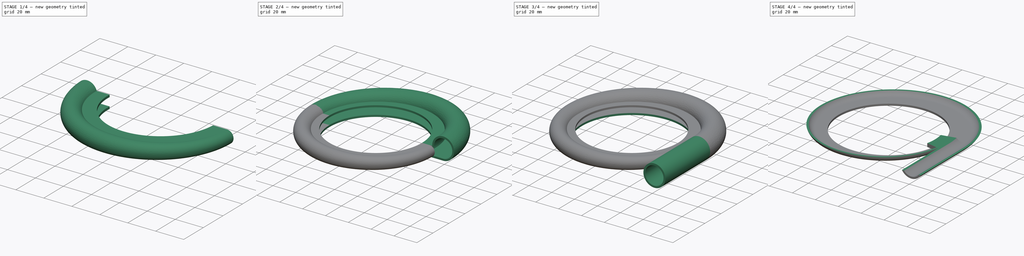
[diagram: build sequence overview — one tinted view per stage of 4, left to right]
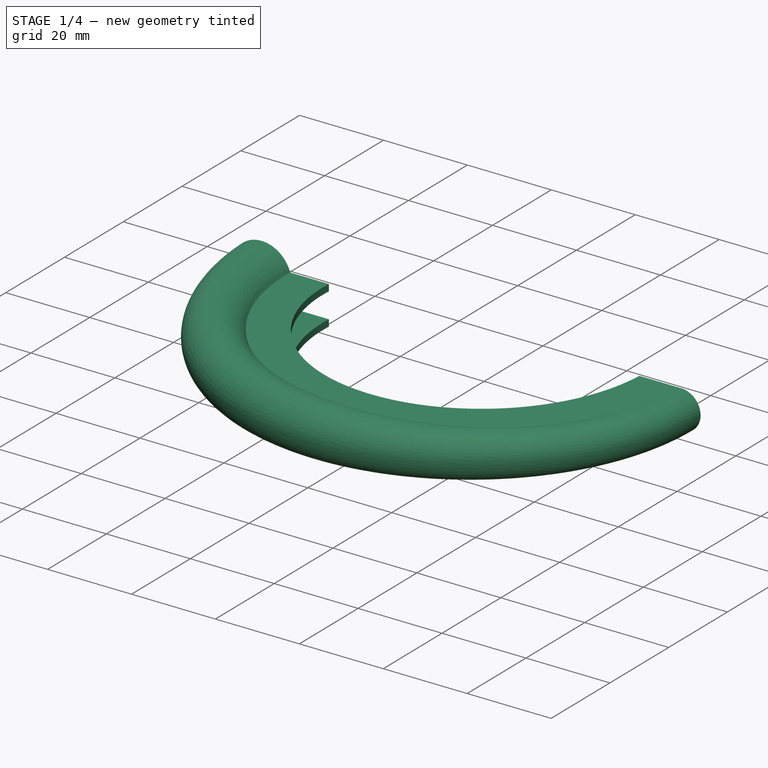
[diagram: stage 1 of 4 — iso view after this stage's code; geometry added in this stage tinted green]
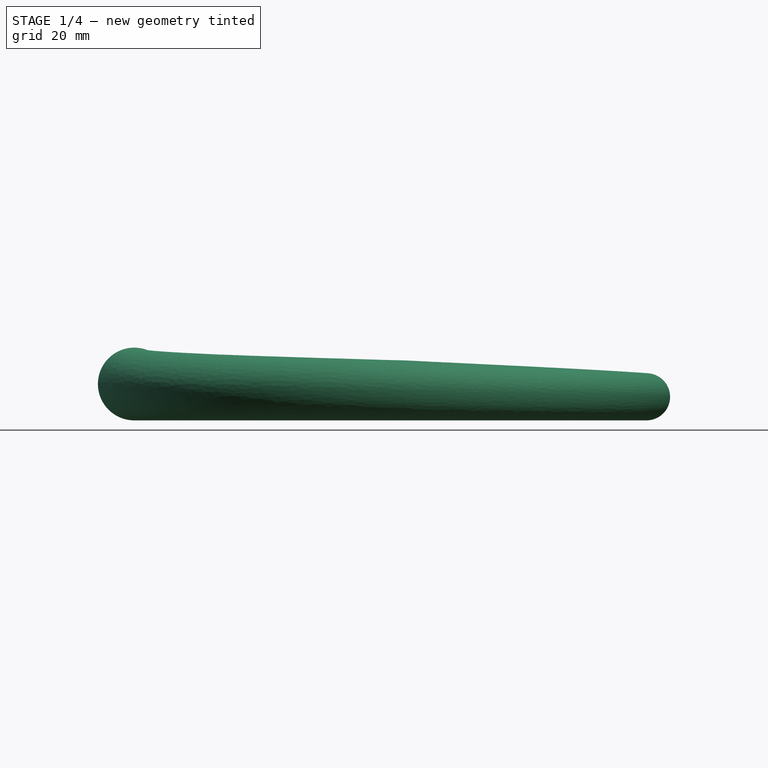
[diagram: stage 1 of 4 — front view after this stage's code; geometry added in this stage tinted green]
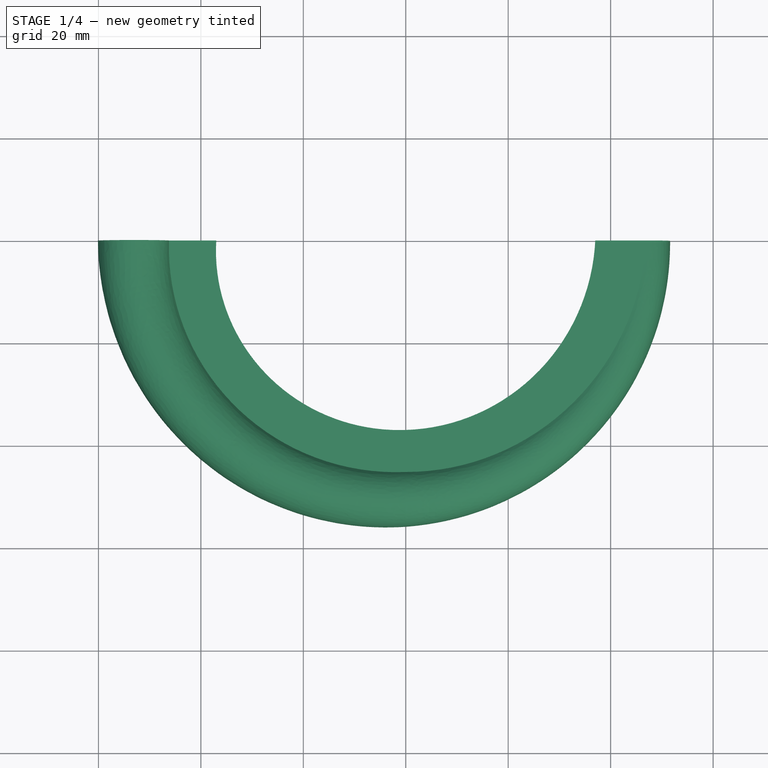
[diagram: stage 1 of 4 — top view after this stage's code; geometry added in this stage tinted green]
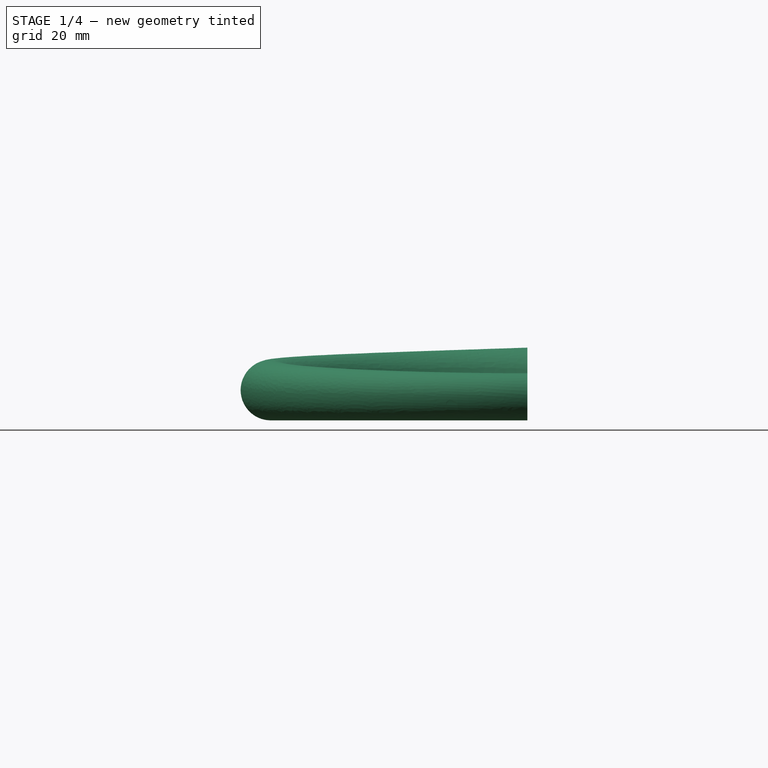
[diagram: stage 1 of 4 — right view after this stage's code; geometry added in this stage tinted green]
FCSTD DOCUMENT  (FreeCAD 0.18R4 (GitTag))
Label: volute_bottom
License: All rights reserved
LicenseURL: http://en.wikipedia.org/wiki/All_rights_reserved
objects: Sketcher::SketchObject×15, PartDesign::Plane×6, PartDesign::AdditivePipe×4, PartDesign::Pocket×3, PartDesign::Revolution×2, PartDesign::Pad×1, PartDesign::Line×1, PartDesign::Body×1
note: 43 computed .brp shape members not serialized (recipe doc carries the construction recipe); baked Part::Feature solids carry a one-line shape summary decoded from their .brp

FEATURE [PartDesign::Plane] DatumPlane
  AttachmentOffset = pos=(47,0,0) rot=(0,0,1;0rad)
  Length = 136.914
  MapMode = 5
  Placement = pos=(47,0,0) rot=(1,0,0;1.5708rad)
  ResizeMode = 0
  Support = -> [XZ_Plane]
  Width = 30.0733
FEATURE [Sketcher::SketchObject] Sketch
  MapMode = 5
  Placement = pos=(47,0,0) rot=(1,0,0;1.5708rad)
  Support = -> [DatumPlane]
  sketch-geometry (8):
    g0: LineSegment StartX=2.96654e-08 StartY=3 StartZ=0 EndX=-10 EndY=3 EndZ=0
    g1: LineSegment StartX=-10 StartY=-3 StartZ=0 EndX=0 EndY=-3 EndZ=0
    g2: ArcOfCircle CenterX=0 CenterY=0 CenterZ=0 NormalX=0 NormalY=0 NormalZ=1 AngleXU=0 Radius=3 StartAngle=4.71239 EndAngle=7.85398
    g3: LineSegment StartX=-10 StartY=3 StartZ=0 EndX=-10 EndY=4.6 EndZ=0
    g4: LineSegment StartX=-10 StartY=4.6 StartZ=0 EndX=2.96654e-08 EndY=4.6 EndZ=0
    g5: LineSegment StartX=-10 StartY=-3 StartZ=0 EndX=-10 EndY=-4.6 EndZ=0
    g6: LineSegment StartX=-10 StartY=-4.6 StartZ=0 EndX=0 EndY=-4.6 EndZ=0
    g7: ArcOfCircle CenterX=0 CenterY=0 CenterZ=0 NormalX=0 NormalY=0 NormalZ=1 AngleXU=0 Radius=4.6 StartAngle=4.71239 EndAngle=7.85398
  constraints (23):
    c: Horizontal(g0)
    c: Horizontal(g1)
    c: Symmetric(g1,g0,g-1)
    c: Coincident(g2,g-1)
    c: Coincident(g2,g0)
    c: Coincident(g2,g1)
    c: Vertical(g1,g2)
    c: Coincident(g0,g3)
    c: Vertical(g3)
    c: Coincident(g3,g4)
    c: Vertical(g5)
    c: Coincident(g5,g6)
    c: Horizontal(g6)
    c: Distance(g3) = 1.6
    c: Distance(g5) = 1.6
    c: Coincident(g5,g1)
    c: Vertical(g6,g1)
    c: Vertical(g4,g0)
    c: Coincident(g7,g2)
    c: Coincident(g7,g4)
    c: Coincident(g7,g6)
    c: DistanceY(g1,g0) = 6
    c: Distance(g0) = 10
FEATURE [PartDesign::Plane] DatumPlane001
  AttachmentOffset = pos=(-50,0,0) rot=(0,0,1;0rad)
  Length = 129.352
  MapMode = 5
  Placement = pos=(-1.11e-14,-50,1.11e-14) rot=(0.57735,0.57735,0.57735;2.0944rad)
  ResizeMode = 0
  Support = -> [YZ_Plane]
  Width = 29.7804
FEATURE [Sketcher::SketchObject] Sketch001
  MapMode = 5
  Placement = pos=(-1.11e-14,-50,1.11e-14) rot=(0.57735,0.57735,0.57735;2.0944rad)
  Support = -> [DatumPlane001]
  sketch-geometry (8):
    g0: ArcOfCircle CenterX=0 CenterY=1.25 CenterZ=0 NormalX=0 NormalY=0 NormalZ=1 AngleXU=0 Radius=4.25 StartAngle=0.42439 EndAngle=4.71239
    g1: LineSegment StartX=0 StartY=-3 StartZ=0 EndX=13 EndY=-3 EndZ=0
    g2: LineSegment StartX=13 StartY=3 StartZ=0 EndX=3.87298 EndY=3 EndZ=0
    g3: LineSegment StartX=13 StartY=3 StartZ=0 EndX=13 EndY=4.6 EndZ=0
    g4: LineSegment StartX=13 StartY=4.6 StartZ=0 EndX=4.79583 EndY=4.6 EndZ=0
    g5: LineSegment StartX=13 StartY=-3 StartZ=0 EndX=13 EndY=-4.6 EndZ=0
    g6: LineSegment StartX=13 StartY=-4.6 StartZ=0 EndX=0 EndY=-4.6 EndZ=0
    g7: ArcOfCircle CenterX=0 CenterY=1.25 CenterZ=0 NormalX=0 NormalY=0 NormalZ=1 AngleXU=0 Radius=5.85 StartAngle=0.609734 EndAngle=4.71239
  constraints (24):
    c: Radius(g0) = 4.25
    c: Coincident(g2,g0)
    c: Horizontal(g1)
    c: Horizontal(g2)
    c: Coincident(g0,g1)
    c: DistanceY(g1,g2) = 6
    c: DistanceX(g0,g2) = 13
    c: Vertical(g3)
    c: Coincident(g3,g4)
    c: Horizontal(g4)
    c: Coincident(g1,g5)
    c: Vertical(g5)
    c: Coincident(g5,g6)
    c: Coincident(g7,g0)
    c: Coincident(g7,g4)
    c: Radius(g7) = 5.85
    c: Coincident(g3,g2)
    c: Vertical(g0,g-1)
    c: Tangent(g7,g6) = 1.5708
    c: Vertical(g6,g0)
    c: Vertical(g0,g-1)
    c: Distance(g3) = 1.6
    c: Distance(g0,g-1) = 3
    c: Vertical(g1,g2)
FEATURE [PartDesign::Plane] DatumPlane002
  AttachmentOffset = pos=(-53,0,0) rot=(0,0,1;0rad)
  Length = 136.914
  MapMode = 5
  Placement = pos=(-53,0,0) rot=(1,0,0;1.5708rad)
  ResizeMode = 0
  Support = -> [XZ_Plane]
  Width = 30.0733
FEATURE [Sketcher::SketchObject] Sketch002
  MapMode = 5
  Placement = pos=(-53,0,0) rot=(1,0,0;1.5708rad)
  Support = -> [DatumPlane002]
  sketch-geometry (8):
    g0: ArcOfCircle CenterX=0 CenterY=2.5 CenterZ=0 NormalX=0 NormalY=0 NormalZ=1 AngleXU=0 Radius=5.5 StartAngle=0.0910348 EndAngle=4.71238
    g1: LineSegment StartX=5.47723 StartY=3 StartZ=0 EndX=16 EndY=3 EndZ=0
    g2: LineSegment StartX=16 StartY=-3 StartZ=0 EndX=-2.99372e-05 EndY=-3 EndZ=0
    g3: LineSegment StartX=16 StartY=3 StartZ=0 EndX=16 EndY=4.6 EndZ=0
    g4: LineSegment StartX=16 StartY=4.6 StartZ=0 EndX=6.78233 EndY=4.6 EndZ=0
    g5: LineSegment StartX=16 StartY=-3 StartZ=0 EndX=16 EndY=-4.6 EndZ=0
    g6: LineSegment StartX=16 StartY=-4.6 StartZ=0 EndX=0 EndY=-4.6 EndZ=0
    g7: ArcOfCircle CenterX=0 CenterY=2.5 CenterZ=0 NormalX=0 NormalY=0 NormalZ=1 AngleXU=0 Radius=7.1 StartAngle=0.300266 EndAngle=4.71239
  constraints (23):
    c: Horizontal(g1)
    c: Horizontal(g2)
    c: Symmetric(g2,g1,g-1)
    c: DistanceX(g0,g1) = 16
    c: Coincident(g0,g1)
    c: Coincident(g0,g2)
    c: Coincident(g1,g3)
    c: Vertical(g3)
    c: Coincident(g3,g4)
    c: Horizontal(g4)
    c: Vertical(g5)
    c: Coincident(g5,g6)
    c: Horizontal(g6)
    c: Coincident(g5,g2)
    c: Distance(g3) = 1.6
    c: Distance(g5) = 1.6
    c: Coincident(g7,g0)
    c: Coincident(g7,g4)
    c: DistanceY(g2,g1) = 6
    c: Vertical(g0,g-1)
    c: Tangent(g7,g6) = 1.5708
    c: Radius(g0) = 5.5
    c: Radius(g7) = 7.1
FEATURE [PartDesign::Plane] DatumPlane003
  AttachmentOffset = pos=(56,0,0) rot=(0,0,1;0rad)
  Length = 129.352
  MapMode = 5
  Placement = pos=(1.24e-14,56,-1.24e-14) rot=(0.57735,0.57735,0.57735;2.0944rad)
  ResizeMode = 0
  Support = -> [YZ_Plane]
  Width = 29.7804
FEATURE [Sketcher::SketchObject] Sketch003
  MapMode = 5
  Placement = pos=(1.24e-14,56,-1.24e-14) rot=(0.57735,0.57735,0.57735;2.0944rad)
  Support = -> [DatumPlane003]
  sketch-geometry (8):
    g0: ArcOfCircle CenterX=0 CenterY=3.75 CenterZ=0 NormalX=0 NormalY=0 NormalZ=1 AngleXU=0 Radius=6.75 StartAngle=4.71239 EndAngle=9.53612
    g1: LineSegment StartX=-6.7082 StartY=3 StartZ=0 EndX=-19 EndY=3 EndZ=0
    g2: LineSegment StartX=-19 StartY=-3 StartZ=0 EndX=3.61201e-05 EndY=-3 EndZ=0
    g3: ArcOfCircle CenterX=0 CenterY=3.75 CenterZ=0 NormalX=0 NormalY=0 NormalZ=1 AngleXU=0 Radius=8.35 StartAngle=4.71239 EndAngle=9.3228
    g4: LineSegment StartX=-19 StartY=3 StartZ=0 EndX=-19 EndY=4.6 EndZ=0
    g5: LineSegment StartX=-19 StartY=4.6 StartZ=0 EndX=-8.30662 EndY=4.6 EndZ=0
    g6: LineSegment StartX=-19 StartY=-3 StartZ=0 EndX=-19 EndY=-4.6 EndZ=0
    g7: LineSegment StartX=-19 StartY=-4.6 StartZ=0 EndX=0 EndY=-4.6 EndZ=0
  constraints (23):
    c: Radius(g0) = 6.75
    c: Horizontal(g1)
    c: Horizontal(g2)
    c: Symmetric(g2,g1,g-1)
    c: DistanceY(g2,g1) = 6
    c: Coincident(g0,g2)
    c: Coincident(g0,g1)
    c: DistanceX(g1,g0) = 19
    c: Coincident(g3,g0)
    c: Radius(g3) = 8.35
    c: Coincident(g1,g4)
    c: Coincident(g4,g5)
    c: Coincident(g5,g3)
    c: Coincident(g2,g6)
    c: Vertical(g6)
    c: Coincident(g6,g7)
    c: Horizontal(g7)
    c: Vertical(g4)
    c: Horizontal(g5)
    c: Distance(g4) = 1.6
    c: Distance(g6) = 1.6
    c: Vertical(g0,g-1)
    c: Tangent(g7,g3) = -1.5708
FEATURE [PartDesign::Plane] DatumPlane004
  AttachmentOffset = pos=(59,0,0) rot=(0,0,1;0rad)
  Length = 136.914
  MapMode = 5
  Placement = pos=(59,0,0) rot=(1,0,0;1.5708rad)
  ResizeMode = 0
  Support = -> [XZ_Plane]
  Width = 30.0733
FEATURE [Sketcher::SketchObject] Sketch004
  MapMode = 5
  Placement = pos=(59,0,0) rot=(1,0,0;1.5708rad)
  Support = -> [DatumPlane004]
  sketch-geometry (8):
    g0: ArcOfCircle CenterX=0 CenterY=5 CenterZ=0 NormalX=0 NormalY=0 NormalZ=1 AngleXU=0 Radius=8 StartAngle=4.71239 EndAngle=9.67746
    g1: LineSegment StartX=-7.74597 StartY=3 StartZ=0 EndX=-22 EndY=3 EndZ=0
    g2: LineSegment StartX=-22 StartY=-3 StartZ=0 EndX=2.10554e-05 EndY=-3 EndZ=0
    g3: LineSegment StartX=-22 StartY=3 StartZ=0 EndX=-22 EndY=4.6 EndZ=0
    g4: LineSegment StartX=-22 StartY=4.6 StartZ=0 EndX=-9.59166 EndY=4.6 EndZ=0
    g5: LineSegment StartX=-22 StartY=-3 StartZ=0 EndX=-22 EndY=-4.6 EndZ=0
    g6: LineSegment StartX=-22 StartY=-4.6 StartZ=0 EndX=0 EndY=-4.6 EndZ=0
    g7: ArcOfCircle CenterX=0 CenterY=5 CenterZ=0 NormalX=0 NormalY=0 NormalZ=1 AngleXU=0 Radius=9.6 StartAngle=4.71239 EndAngle=9.46646
  constraints (23):
    c: Radius(g0) = 8
    c: Horizontal(g1)
    c: Symmetric(g2,g1,g-1)
    c: Horizontal(g2)
    c: DistanceY(g2,g1) = 6
    c: DistanceX(g1,g0) = 22
    c: Coincident(g0,g2)
    c: Coincident(g0,g1)
    c: Coincident(g1,g3)
    c: Vertical(g3)
    c: Coincident(g3,g4)
    c: Horizontal(g4)
    c: Coincident(g2,g5)
    c: Vertical(g5)
    c: Coincident(g5,g6)
    c: Horizontal(g6)
    c: Coincident(g7,g0)
    c: Coincident(g7,g4)
    c: Radius(g7) = 9.6
    c: Distance(g3) = 1.6
    c: Distance(g5) = 1.6
    c: Vertical(g0,g-1)
    c: Tangent(g7,g6) = -1.5708
FEATURE [Sketcher::SketchObject] Sketch005
  MapMode = 5
  Support = -> [XY_Plane]
  sketch-geometry (5):
    g0: ArcOfCircle [constr] CenterX=3.28278 CenterY=0.383694 CenterZ=0 NormalX=0 NormalY=0 NormalZ=1 AngleXU=0 Radius=52.7186 StartAngle=6.27591 EndAngle=7.91629
    g1: ArcOfCircle [constr] CenterX=3.32028 CenterY=-0.217241 CenterZ=0 NormalX=0 NormalY=0 NormalZ=1 AngleXU=0 Radius=53.3207 StartAngle=1.63311 EndAngle=3.13752
    g2: ArcOfCircle [constr] CenterX=-3.08966 CenterY=-0.191125 CenterZ=0 NormalX=0 NormalY=0 NormalZ=1 AngleXU=0 Radius=46.9107 StartAngle=3.13752 EndAngle=4.7783
    g3: ArcOfCircle CenterX=-3.10227 CenterY=1.14829e-07 CenterZ=0 NormalX=0 NormalY=0 NormalZ=1 AngleXU=0 Radius=47.1023 StartAngle=4.7783 EndAngle=6.28319
    g4: LineSegment [constr] StartX=44 StartY=0 StartZ=0 EndX=44 EndY=-23.8394 EndZ=0
  constraints (16):
    c: PointOnObject(g0,g-1)
    c: PointOnObject(g0,g-2)
    c: DistanceX(g-1,g0) = 56
    c: DistanceY(g-1,g0) = 53
    c: PointOnObject(g1,g-1)
    c: Tangent(g1,g0) = -1.5708
    c: DistanceX(g1,g-1) = 50
    c: PointOnObject(g2,g-2)
    c: Tangent(g2,g1) = -1.5708
    c: DistanceY(g2,g-1) = 47
    c: PointOnObject(g3,g-1)
    c: Tangent(g3,g2) = -1.5708
    c: DistanceX(g-1,g3) = 44
    c: Coincident(g4,g3)
    c: Vertical(g4)
    c: Tangent(g3,g4)
FEATURE [PartDesign::AdditivePipe] AdditivePipe
  AuxilleryCurvelinear = true
  AuxillerySpineTangent = false
  Binormal = (0,0,0)
  Mode = 0
  Placement = pos=(47,0,0) rot=(1,0,0;1.5708rad)
  Profile = -> Sketch
  Sections = -> [Sketch001]
  Spine = -> Sketch005
  SpineTangent = false
  Transformation = 1
  Transition = 0
FEATURE [Sketcher::SketchObject] CopySketch006
  sketch-geometry (5):
    g0: ArcOfCircle [constr] CenterX=3.28278 CenterY=0.383695 CenterZ=0 NormalX=0 NormalY=0 NormalZ=1 AngleXU=0 Radius=52.7186 StartAngle=6.27591 EndAngle=7.91629
    g1: ArcOfCircle [constr] CenterX=3.32028 CenterY=-0.217241 CenterZ=0 NormalX=0 NormalY=0 NormalZ=1 AngleXU=0 Radius=53.3207 StartAngle=1.63311 EndAngle=3.13752
    g2: ArcOfCircle CenterX=-3.08966 CenterY=-0.191126 CenterZ=0 NormalX=0 NormalY=0 NormalZ=1 AngleXU=0 Radius=46.9107 StartAngle=3.13752 EndAngle=4.7783
    g3: ArcOfCircle [constr] CenterX=-3.10227 CenterY=7.62761e-07 CenterZ=0 NormalX=0 NormalY=0 NormalZ=1 AngleXU=0 Radius=47.1023 StartAngle=4.7783 EndAngle=6.28319
    g4: LineSegment [constr] StartX=44 StartY=-1.24e-14 StartZ=0 EndX=44 EndY=-23.8394 EndZ=0
  constraints (16):
    c: PointOnObject(g0,g-1)
    c: PointOnObject(g0,g-2)
    c: DistanceX(g-1,g0) = 56
    c: DistanceY(g-1,g0) = 53
    c: PointOnObject(g1,g-1)
    c: Tangent(g1,g0) = -1.5708
    c: DistanceX(g1,g-1) = 50
    c: PointOnObject(g2,g-2)
    c: Tangent(g2,g1) = -1.5708
    c: DistanceY(g2,g-1) = 47
    c: PointOnObject(g3,g-1)
    c: Tangent(g3,g2) = -1.5708
    c: DistanceX(g-1,g3) = 44
    c: Coincident(g4,g3)
    c: Vertical(g4)
    c: Tangent(g3,g4)
FEATURE [PartDesign::AdditivePipe] AdditivePipe001
  AuxilleryCurvelinear = true
  AuxillerySpineTangent = false
  BaseFeature = -> AdditivePipe
  Binormal = (0,0,0)
  Mode = 0
  Placement = pos=(47,0,0) rot=(1,0,0;1.5708rad)
  Profile = -> Sketch001
  Sections = -> [Sketch002]
  Spine = -> CopySketch006
  SpineTangent = false
  Transformation = 1
  Transition = 0
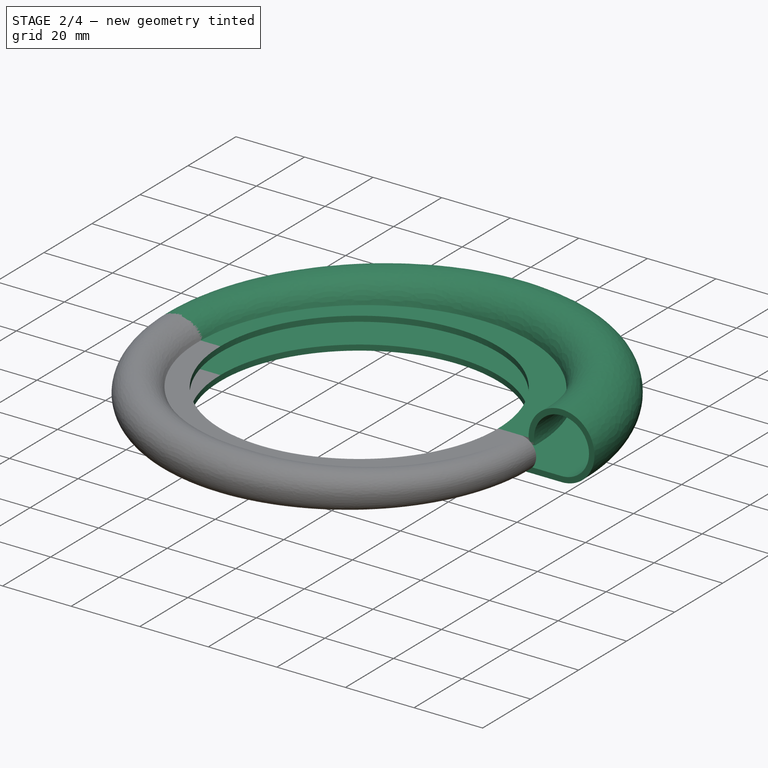
[diagram: stage 2 of 4 — iso view after this stage's code; geometry added in this stage tinted green]
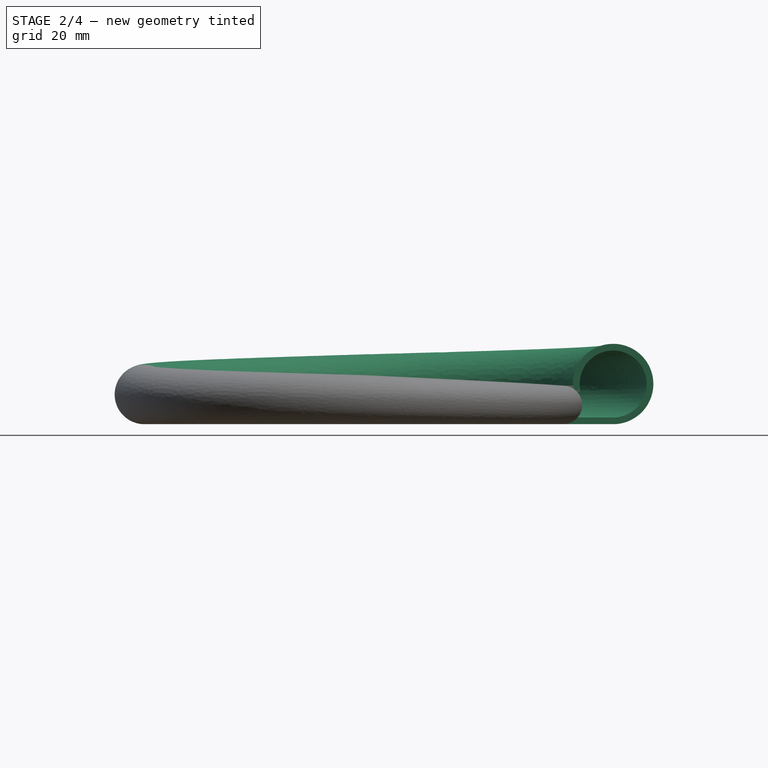
[diagram: stage 2 of 4 — front view after this stage's code; geometry added in this stage tinted green]
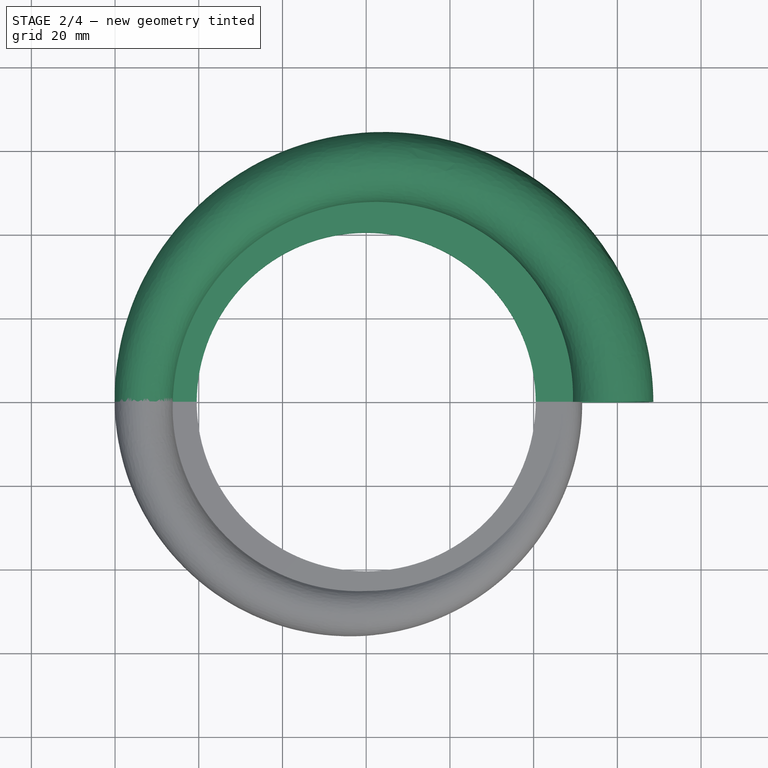
[diagram: stage 2 of 4 — top view after this stage's code; geometry added in this stage tinted green]
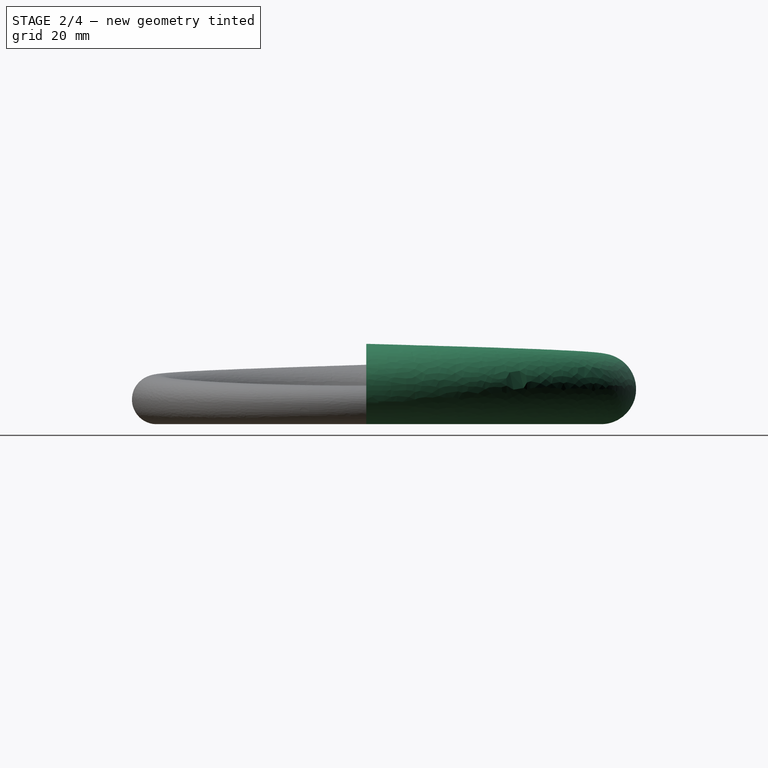
[diagram: stage 2 of 4 — right view after this stage's code; geometry added in this stage tinted green]
FEATURE [Sketcher::SketchObject] CopySketch007
  sketch-geometry (5):
    g0: ArcOfCircle [constr] CenterX=3.28278 CenterY=0.383694 CenterZ=0 NormalX=0 NormalY=0 NormalZ=1 AngleXU=0 Radius=52.7186 StartAngle=6.27591 EndAngle=7.91629
    g1: ArcOfCircle CenterX=3.32027 CenterY=-0.21724 CenterZ=0 NormalX=0 NormalY=0 NormalZ=1 AngleXU=0 Radius=53.3207 StartAngle=1.63311 EndAngle=3.13752
    g2: ArcOfCircle [constr] CenterX=-3.08966 CenterY=-0.191125 CenterZ=0 NormalX=0 NormalY=0 NormalZ=1 AngleXU=0 Radius=46.9107 StartAngle=3.13752 EndAngle=4.7783
    g3: ArcOfCircle [constr] CenterX=-3.10227 CenterY=-8.14253e-08 CenterZ=0 NormalX=0 NormalY=0 NormalZ=1 AngleXU=0 Radius=47.1023 StartAngle=4.7783 EndAngle=6.28319
    g4: LineSegment [constr] StartX=44 StartY=0 StartZ=0 EndX=44 EndY=-23.8394 EndZ=0
  constraints (16):
    c: PointOnObject(g0,g-1)
    c: PointOnObject(g0,g-2)
    c: DistanceX(g-1,g0) = 56
    c: DistanceY(g-1,g0) = 53
    c: PointOnObject(g1,g-1)
    c: Tangent(g1,g0) = -1.5708
    c: DistanceX(g1,g-1) = 50
    c: PointOnObject(g2,g-2)
    c: Tangent(g2,g1) = -1.5708
    c: DistanceY(g2,g-1) = 47
    c: PointOnObject(g3,g-1)
    c: Tangent(g3,g2) = -1.5708
    c: DistanceX(g-1,g3) = 44
    c: Coincident(g4,g3)
    c: Vertical(g4)
    c: Tangent(g3,g4)
FEATURE [PartDesign::AdditivePipe] AdditivePipe002
  AuxilleryCurvelinear = true
  AuxillerySpineTangent = false
  BaseFeature = -> AdditivePipe001
  Binormal = (0,0,0)
  Mode = 0
  Placement = pos=(47,0,0) rot=(1,0,0;1.5708rad)
  Profile = -> Sketch002
  Sections = -> [Sketch003]
  Spine = -> CopySketch007
  SpineTangent = false
  Transformation = 1
  Transition = 0
FEATURE [Sketcher::SketchObject] CopySketch008
  sketch-geometry (5):
    g0: ArcOfCircle CenterX=3.28278 CenterY=0.383694 CenterZ=0 NormalX=0 NormalY=0 NormalZ=1 AngleXU=0 Radius=52.7186 StartAngle=6.27591 EndAngle=7.91629
    g1: ArcOfCircle [constr] CenterX=3.32027 CenterY=-0.21724 CenterZ=0 NormalX=0 NormalY=0 NormalZ=1 AngleXU=0 Radius=53.3207 StartAngle=1.63311 EndAngle=3.13752
    g2: ArcOfCircle [constr] CenterX=-3.08966 CenterY=-0.191125 CenterZ=0 NormalX=0 NormalY=0 NormalZ=1 AngleXU=0 Radius=46.9107 StartAngle=3.13752 EndAngle=4.7783
    g3: ArcOfCircle [constr] CenterX=-3.10227 CenterY=-3.70026e-07 CenterZ=0 NormalX=0 NormalY=0 NormalZ=1 AngleXU=0 Radius=47.1023 StartAngle=4.7783 EndAngle=6.28319
    g4: LineSegment [constr] StartX=44 StartY=0 StartZ=0 EndX=44 EndY=-23.8394 EndZ=0
  constraints (16):
    c: PointOnObject(g0,g-1)
    c: PointOnObject(g0,g-2)
    c: DistanceX(g-1,g0) = 56
    c: DistanceY(g-1,g0) = 53
    c: PointOnObject(g1,g-1)
    c: Tangent(g1,g0) = -1.5708
    c: DistanceX(g1,g-1) = 50
    c: PointOnObject(g2,g-2)
    c: Tangent(g2,g1) = -1.5708
    c: DistanceY(g2,g-1) = 47
    c: PointOnObject(g3,g-1)
    c: Tangent(g3,g2) = -1.5708
    c: DistanceX(g-1,g3) = 44
    c: Coincident(g4,g3)
    c: Vertical(g4)
    c: Tangent(g3,g4)
FEATURE [PartDesign::AdditivePipe] AdditivePipe003
  AuxilleryCurvelinear = true
  AuxillerySpineTangent = false
  BaseFeature = -> AdditivePipe002
  Binormal = (0,0,0)
  Mode = 0
  Placement = pos=(47,0,0) rot=(1,0,0;1.5708rad)
  Profile = -> Sketch003
  Sections = -> [Sketch004]
  Spine = -> CopySketch008
  SpineTangent = false
  Transformation = 1
  Transition = 0
FEATURE [Sketcher::SketchObject] Sketch010
  MapMode = 5
  Support = -> [XY_Plane]
  sketch-geometry (1):
    g0: Circle CenterX=0 CenterY=0 CenterZ=0 NormalX=0 NormalY=0 NormalZ=1 AngleXU=0 Radius=40.5
  constraints (2):
    c: Coincident(g0,g-1)
    c: Radius(g0) = 40.5
FEATURE [PartDesign::Pocket] Pocket
  BaseFeature = -> AdditivePipe003
  Length = 5
  Length2 = 100
  Midplane = true
  Placement = pos=(47,0,0) rot=(1,0,0;1.5708rad)
  Profile = -> Sketch010
  Type = 1
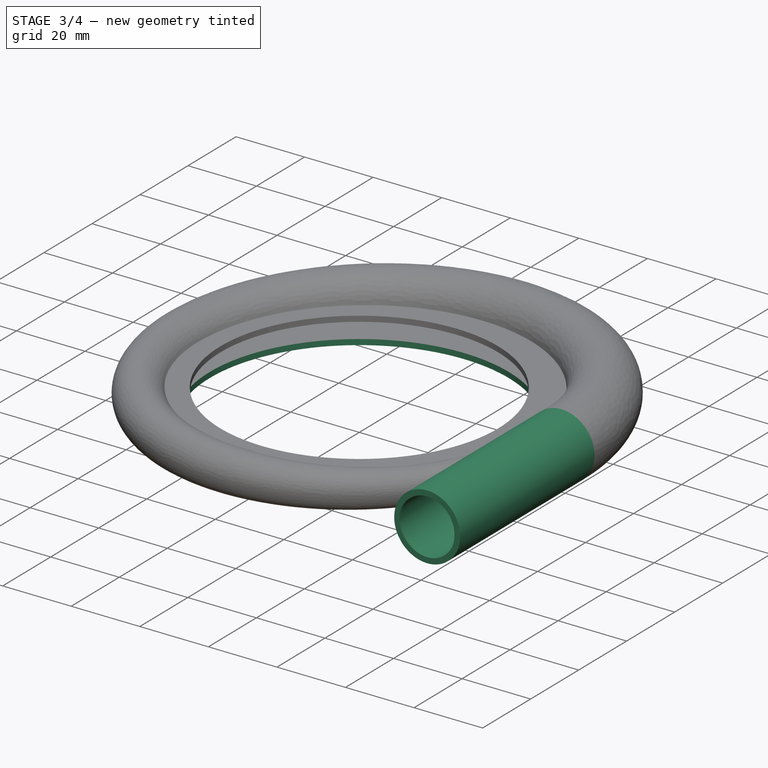
[diagram: stage 3 of 4 — iso view after this stage's code; geometry added in this stage tinted green]
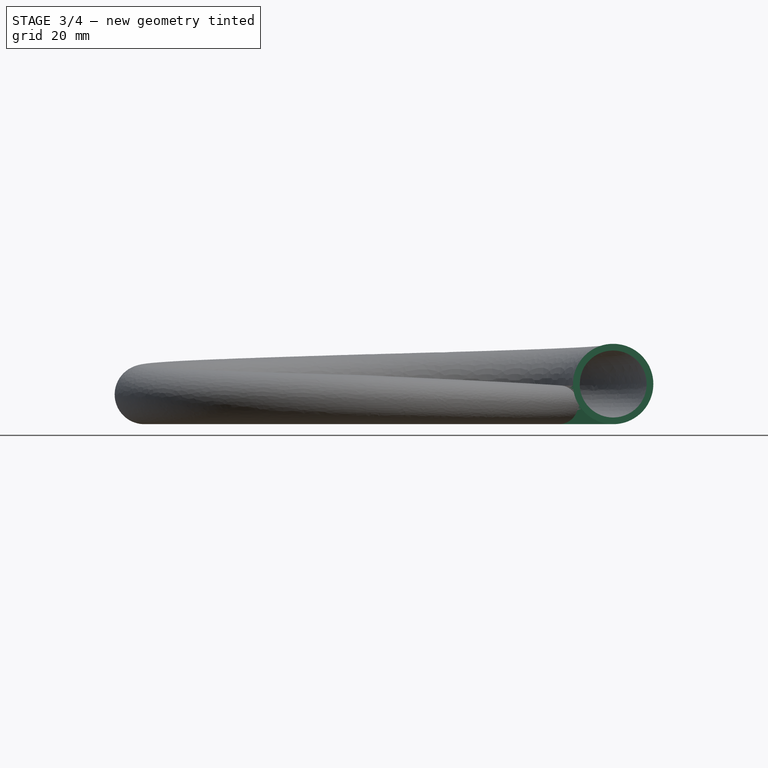
[diagram: stage 3 of 4 — front view after this stage's code; geometry added in this stage tinted green]
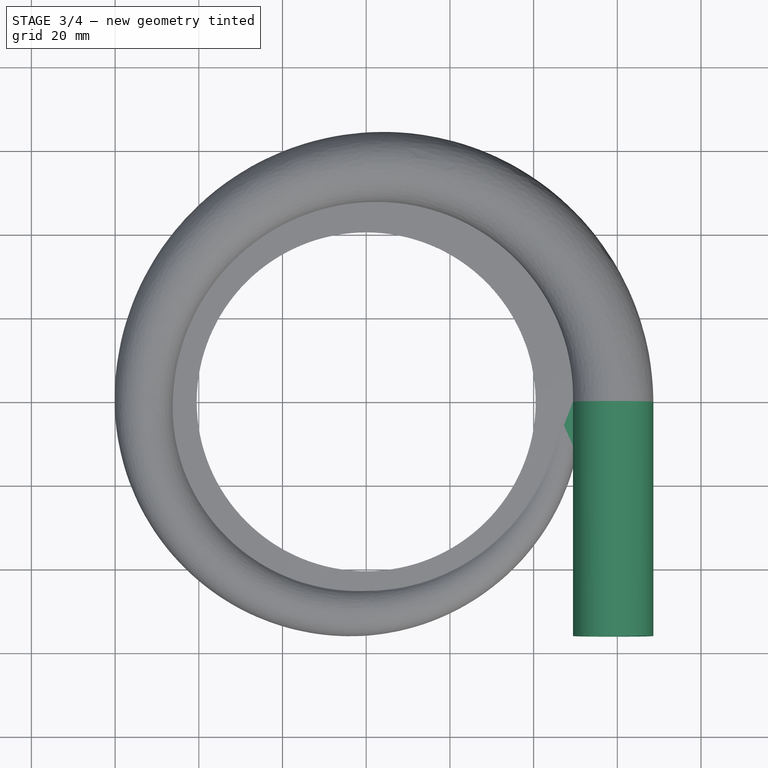
[diagram: stage 3 of 4 — top view after this stage's code; geometry added in this stage tinted green]
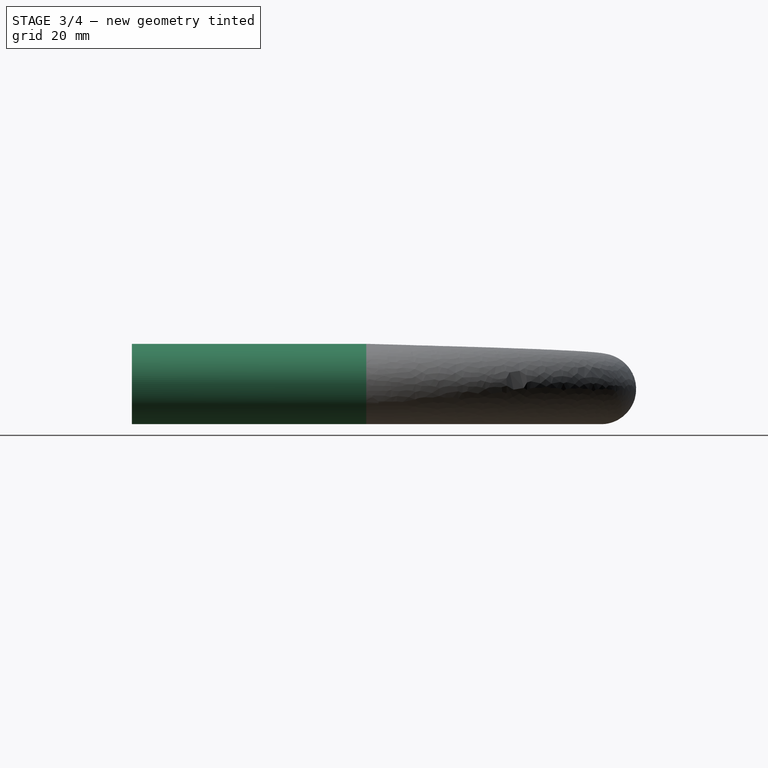
[diagram: stage 3 of 4 — right view after this stage's code; geometry added in this stage tinted green]
FEATURE [Sketcher::SketchObject] Sketch025  label="Sketch027"
  MapMode = 5
  Placement = pos=(0,0,0) rot=(1,0,0;1.5708rad)
  Support = -> [XZ_Plane]
  sketch-geometry (2):
    g0: Circle CenterX=59 CenterY=5 CenterZ=0 NormalX=0 NormalY=0 NormalZ=1 AngleXU=0 Radius=8
    g1: Circle CenterX=59 CenterY=5 CenterZ=0 NormalX=0 NormalY=0 NormalZ=1 AngleXU=0 Radius=9.6
  constraints (5):
    c: Coincident(g1,g0)
    c: Radius(g0) = 8
    c: Radius(g1) = 9.6
    c: DistanceY(g-1,g0) = 5
    c: DistanceX(g-1,g0) = 59
FEATURE [PartDesign::Pad] Pad
  BaseFeature = -> Pocket
  Length = 56
  Length2 = 100
  Placement = pos=(47,0,0) rot=(1,0,0;1.5708rad)
  Profile = -> Sketch025
  Refine = true
  Type = 0
FEATURE [PartDesign::Plane] DatumPlane005
  AttachmentOffset = pos=(0,0,-5) rot=(0,0,1;0rad)
  Length = 151.471
  MapMode = 5
  Placement = pos=(0,0,-5) rot=(0,0,1;0rad)
  ResizeMode = 0
  Support = -> [XY_Plane]
  Width = 144.202
FEATURE [Sketcher::SketchObject] Sketch027  label="Sketch028"
  MapMode = 5
  Placement = pos=(0,0,-5) rot=(0,0,1;0rad)
  Support = -> [DatumPlane005]
  sketch-geometry (1):
    g0: Circle CenterX=0 CenterY=0 CenterZ=0 NormalX=0 NormalY=0 NormalZ=1 AngleXU=0 Radius=43.6
  constraints (2):
    c: Radius(g0) = 43.6
    c: Coincident(g0,g-1)
FEATURE [PartDesign::Pocket] Pocket002
  BaseFeature = -> Pad
  Length = 2
  Length2 = 100
  Placement = pos=(47,0,0) rot=(1,0,0;1.5708rad)
  Profile = -> Sketch027
  Reversed = true
  Type = 0
FEATURE [Sketcher::SketchObject] Sketch028  label="Sketch029"
  ExternalGeometry = -> [Pocket002]
  MapMode = 5
  Placement = pos=(0,0,0) rot=(1,0,0;1.5708rad)
  Support = -> [XZ_Plane]
  sketch-geometry (7):
    g0: ArcOfCircle CenterX=59 CenterY=5 CenterZ=0 NormalX=0 NormalY=0 NormalZ=1 AngleXU=0 Radius=8 StartAngle=3.19161 EndAngle=4.71239
    g1: LineSegment StartX=40.5 StartY=4.6 StartZ=0 EndX=51.01 EndY=4.6 EndZ=0
    g2: LineSegment StartX=40.5 StartY=4.6 StartZ=0 EndX=40.5 EndY=-3 EndZ=0
    g3: LineSegment StartX=59 StartY=-3 StartZ=0 EndX=59 EndY=-4.6 EndZ=0
    g4: LineSegment StartX=40.5 StartY=-3 StartZ=0 EndX=43.6 EndY=-3 EndZ=0
    g5: LineSegment StartX=43.6 StartY=-3 StartZ=0 EndX=43.6 EndY=-4.6 EndZ=0
    g6: LineSegment StartX=43.6 StartY=-4.6 StartZ=0 EndX=59 EndY=-4.6 EndZ=0
  constraints (19):
    c: Horizontal(g1)
    c: Coincident(g0,g1)
    c: Coincident(g1,g2)
    c: Radius(g0) = 8
    c: DistanceY(g-1,g0) = 5
    c: DistanceX(g-1,g0) = 59
    c: Vertical(g0,g0)
    c: Vertical(g3,g0)
    c: Coincident(g0,g3)
    c: Coincident(g5,g6)
    c: Coincident(g3,g6)
    c: Horizontal(g6)
    c: Coincident(g1,g-4)
    c: Coincident(g5,g-5)
    c: Coincident(g5,g4)
    c: Coincident(g4,g-5)
    c: Horizontal(g4)
    c: Coincident(g2,g4)
    c: Vertical(g2)
FEATURE [PartDesign::Line] DatumLine
  AttacherType = Attacher::AttachEngineLine
  AttachmentOffset = pos=(3.28,0,0) rot=(0,0,1;0rad)
  MapMode = 29
  Placement = pos=(3.28,0,1.1e-15) rot=(0,0,1;0rad)
  Support = -> [Z_Axis]
FEATURE [PartDesign::Revolution] Revolution
  Angle = 24
  Axis = (-3e-16,3e-16,1)
  Base = (0,0,0)
  BaseFeature = -> Pocket002
  Midplane = true
  Placement = pos=(47,0,0) rot=(1,0,0;1.5708rad)
  Profile = -> Sketch028
  ReferenceAxis = -> Z_Axis
  Refine = true
  Reversed = true
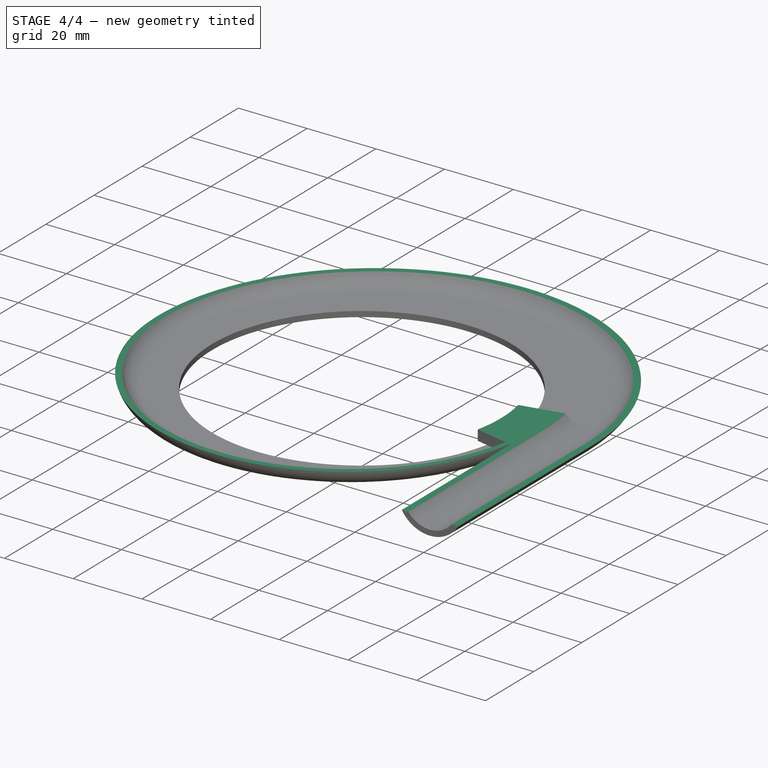
[diagram: stage 4 of 4 — iso view after this stage's code; geometry added in this stage tinted green]
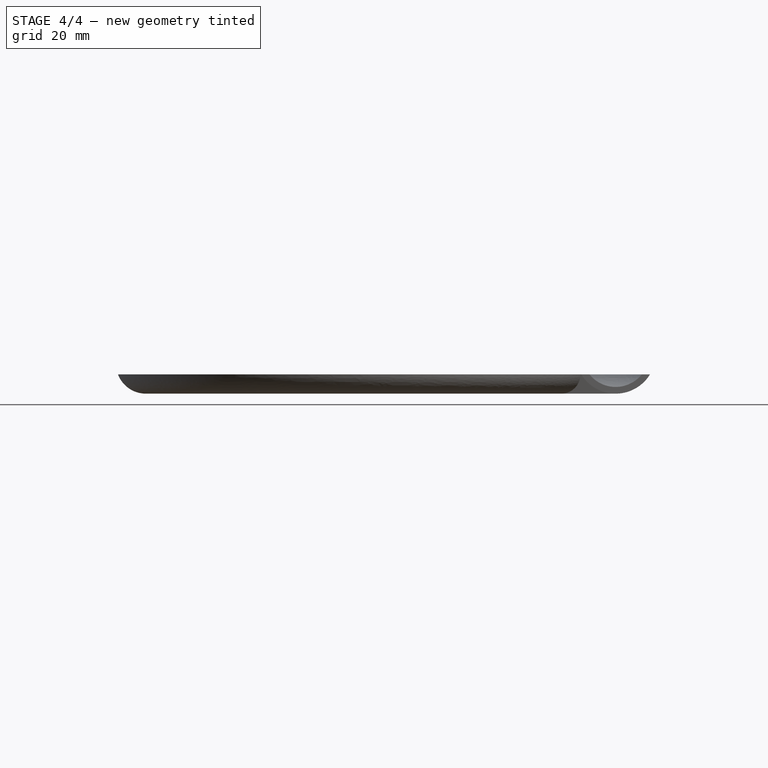
[diagram: stage 4 of 4 — front view after this stage's code; geometry added in this stage tinted green]
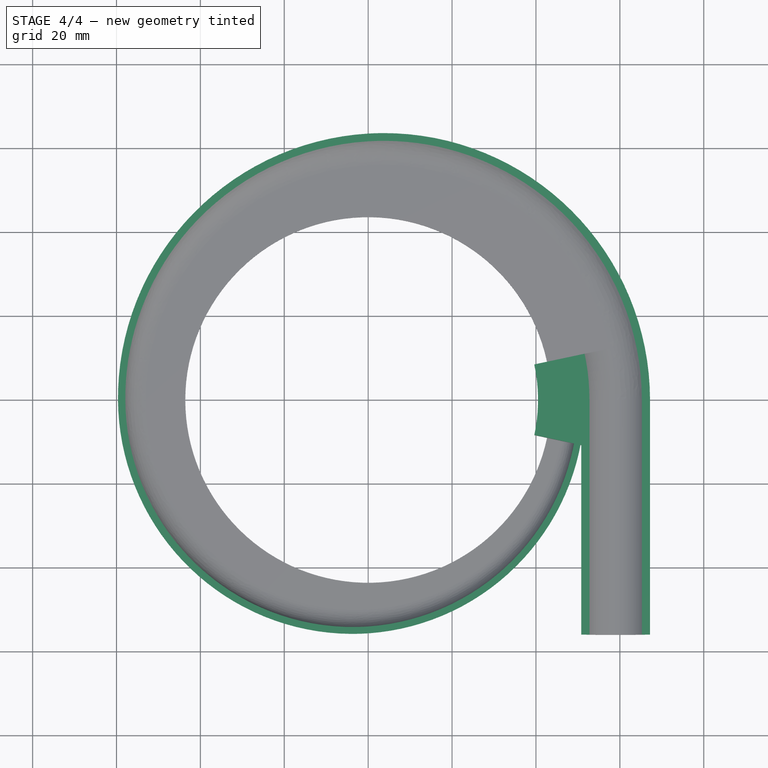
[diagram: stage 4 of 4 — top view after this stage's code; geometry added in this stage tinted green]
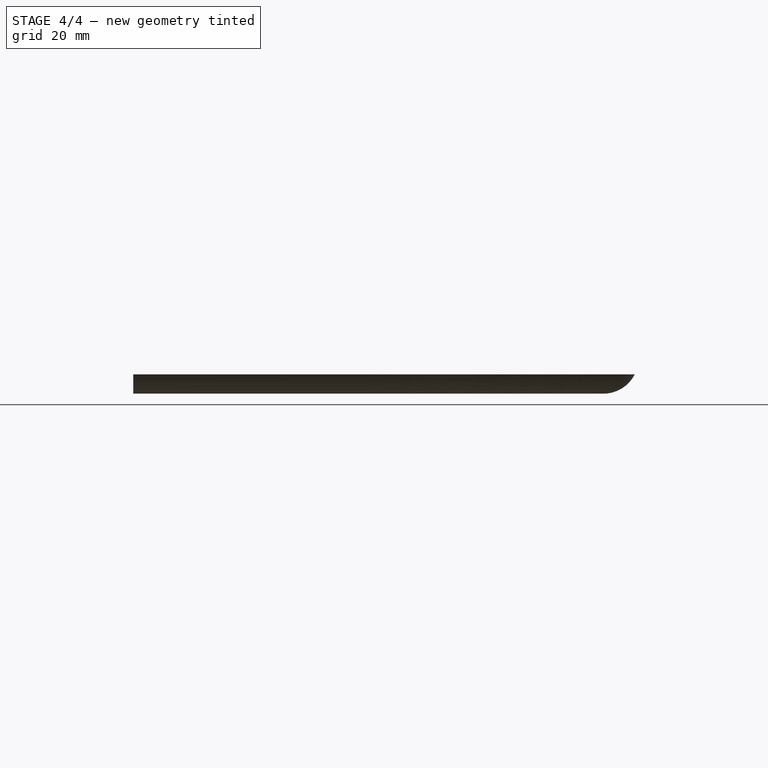
[diagram: stage 4 of 4 — right view after this stage's code; geometry added in this stage tinted green]
FEATURE [Sketcher::SketchObject] Sketch029  label="Sketch030"
  MapMode = 5
  Placement = pos=(0,0,0) rot=(1,0,0;1.5708rad)
  Support = -> [XZ_Plane]
  sketch-geometry (23):
    g0: LineSegment StartX=24.5 StartY=27 StartZ=0 EndX=24.5 EndY=32 EndZ=0
    g1: LineSegment StartX=24.5 StartY=32 StartZ=0 EndX=25.7 EndY=32 EndZ=0
    g2: LineSegment StartX=25.7 StartY=32 StartZ=0 EndX=25.7 EndY=27 EndZ=0
    g3-g7: Circle [constr] x5 (B-spline internal-alignment scaffolding for g8; pole/knot coordinates omitted)
    g8: BSplineCurve PolesCount=5 KnotsCount=3 Degree=3 IsPeriodic=0
    g9: GeomPoint [constr] X=24.5 Y=27 Z=0
    g10: GeomPoint [constr] X=27.5 Y=11.125 Z=0
    g11: GeomPoint [constr] X=40.5 Y=3.5 Z=0
    g12: LineSegment StartX=40.5 StartY=3.5 StartZ=0 EndX=40.5 EndY=4.6 EndZ=0
    g13-g17: Circle [constr] x5 (B-spline internal-alignment scaffolding for g18; pole/knot coordinates omitted)
    g18: BSplineCurve PolesCount=5 KnotsCount=3 Degree=3 IsPeriodic=0
    g19: GeomPoint [constr] X=25.7 Y=27 Z=0
    g20: GeomPoint [constr] X=28.3438 Y=11.6536 Z=0
    g21: GeomPoint [constr] X=40.5 Y=4.6 Z=0
    g22: LineSegment [constr] StartX=26.5 StartY=11 StartZ=0 EndX=27.5876 EndY=11.5071 EndZ=0
  constraints (44):
    c: Coincident(g0,g1)
    c: Coincident(g1,g2)
    c: Horizontal(g1)
    c: Vertical(g0)
    c: Vertical(g2)
    c: Horizontal(g0,g2)
    c: DistanceX(g-1,g0) = 24.5
    c: DistanceX(g1,g1) = 1.2
    c: DistanceY(g-1,g0) = 27
    c: DistanceY(g2,g2) = 5
    c: Radius(g3) = 0.8
    c: Equal(g3, g4-g7) x4
    c: InternalAlignment(g3-g7 -> g8) x5
    c: InternalAlignment(g9,g8)
    c: InternalAlignment(g10,g8)
    c: InternalAlignment(g11,g8)
    c: Distance(g8,g-1) = 3.5
    c: Distance(g12) = 1.1
    c: Vertical(g12)
    c: Coincident(g12,g8)
    c: Distance(g12,g-2) = 40.5
    c: Horizontal(g8,g6)
    c: Vertical(g4,g0)
    c: Distance(g6,g8) = 8
    c: DistanceY(g4,g0) = 8
    c: Radius(g13) = 1
    c: Equal(g13, g14-g17) x4
    c: InternalAlignment(g13-g17 -> g18) x5
    c: InternalAlignment(g19,g18)
    c: InternalAlignment(g20,g18)
    c: InternalAlignment(g21,g18)
    c: Coincident(g18,g12)
    c: Coincident(g0,g8)
    c: Coincident(g18,g2)
    c: Vertical(g14,g2)
    c: Horizontal(g16,g12)
    c: Horizontal(g14,g4)
    c: Vertical(g16,g6)
    c: DistanceY(g5,g4) = 8
    c: DistanceX(g5,g6) = 6
    c: Distance(g5,g15) = 1.2
    c: Coincident(g22,g15)
    c: Coincident(g22,g5)
    c: Angle(g22,g-1) = 2.70526
FEATURE [PartDesign::Revolution] Revolution001
  Angle = 360
  Axis = (-3e-16,3e-16,1)
  Base = (0,0,0)
  BaseFeature = -> Revolution
  Placement = pos=(47,0,0) rot=(1,0,0;1.5708rad)
  Profile = -> Sketch029
  ReferenceAxis = -> Z_Axis
  Refine = true
  Reversed = true
FEATURE [Sketcher::SketchObject] Sketch030  label="Sketch031"
  ExternalGeometry = -> [Revolution001]
  MapMode = 5
  Placement = pos=(47,-56,1e-16) rot=(1,0,0;1.5708rad)
  Support = -> [Revolution001]
  sketch-geometry (4):
    g0: LineSegment StartX=22 StartY=0 StartZ=0 EndX=-108 EndY=0 EndZ=0
    g1: LineSegment StartX=-108 StartY=0 StartZ=0 EndX=-108 EndY=35 EndZ=0
    g2: LineSegment StartX=-108 StartY=35 StartZ=0 EndX=22 EndY=35 EndZ=0
    g3: LineSegment StartX=22 StartY=35 StartZ=0 EndX=22 EndY=0 EndZ=0
  constraints (12):
    c: Coincident(g0,g1)
    c: Coincident(g1,g2)
    c: Coincident(g2,g3)
    c: Coincident(g3,g0)
    c: Horizontal(g0)
    c: Horizontal(g2)
    c: Vertical(g1)
    c: Vertical(g3)
    c: DistanceX(g-3,g0) = 10
    c: DistanceX(g2,g2) = 130
    c: DistanceY(g-1,g0) = 0
    c: DistanceY(g1,g1) = 35
FEATURE [PartDesign::Pocket] Pocket003
  BaseFeature = -> Revolution001
  Length = 200
  Length2 = 100
  Placement = pos=(47,0,0) rot=(1,0,0;1.5708rad)
  Profile = -> Sketch030
  Type = 0
FEATURE [PartDesign::Body] Body  label="volute"
  Group = -> [DatumPlane,Sketch,DatumPlane001,Sketch001,DatumPlane002,Sketch002,DatumPlane003,Sketch003,DatumPlane004,Sketch004,Sketch005,AdditivePipe,AdditivePipe001,CopySketch006,AdditivePipe002,CopySketch007,AdditivePipe003,CopySketch008,Sketch010,Pocket,Sketch025,Pad,DatumPlane005,Sketch027,Pocket002,Sketch028,DatumLine,Revolution,Sketch029,Revolution001,Sketch030,Pocket003]
  Origin = -> Origin
  Tip = -> Pocket003
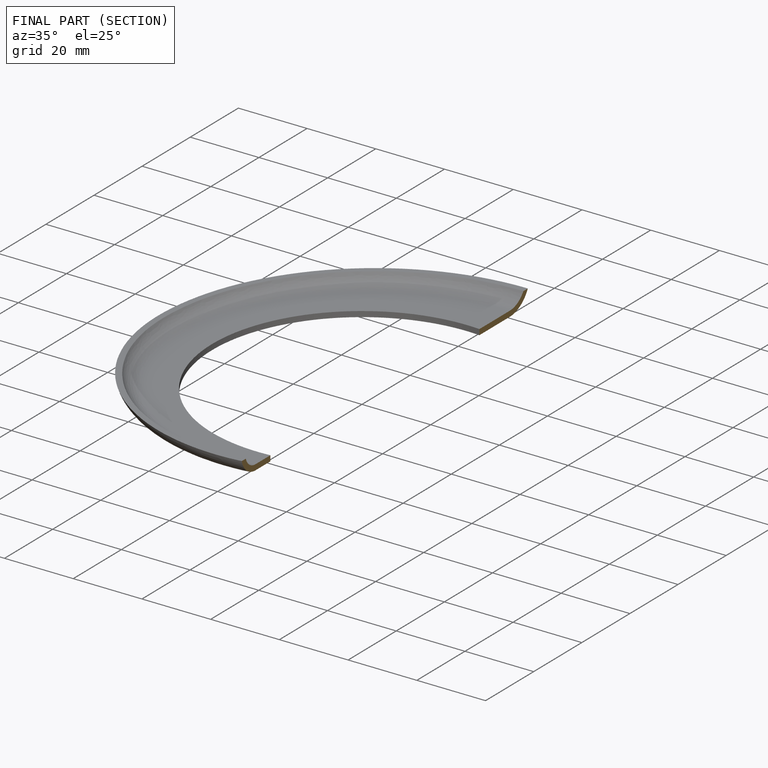
[diagram: finished part — half-section view (interior)]
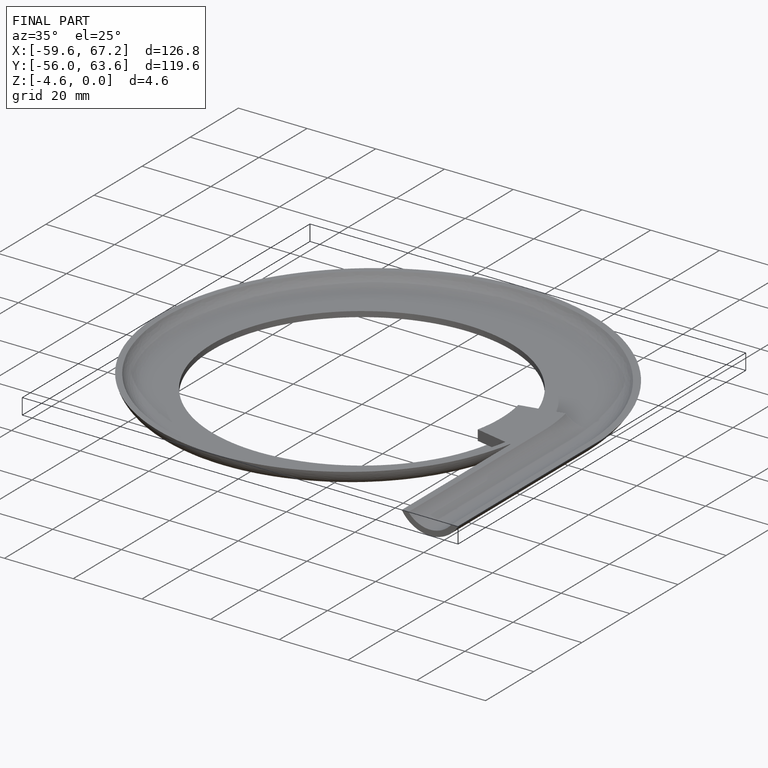
[diagram: finished part — iso view with bounding-box wireframe]
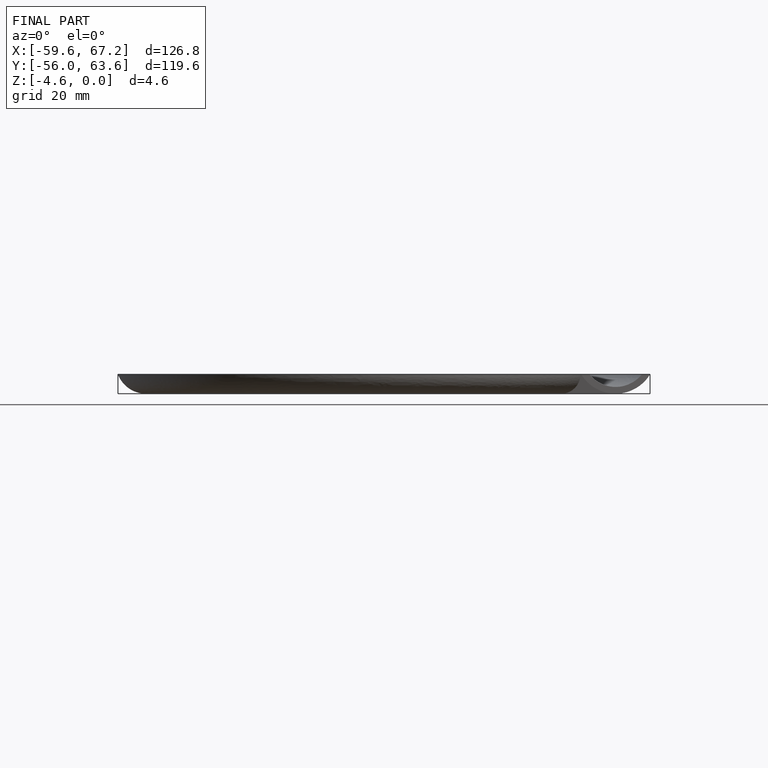
[diagram: finished part — front view with bounding-box wireframe]
